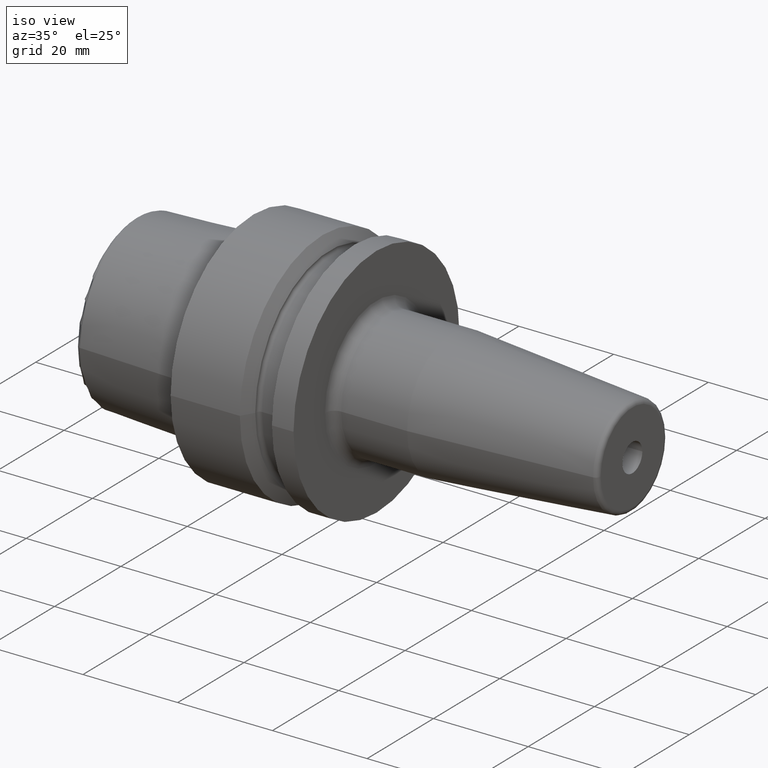
[diagram: clean part render]
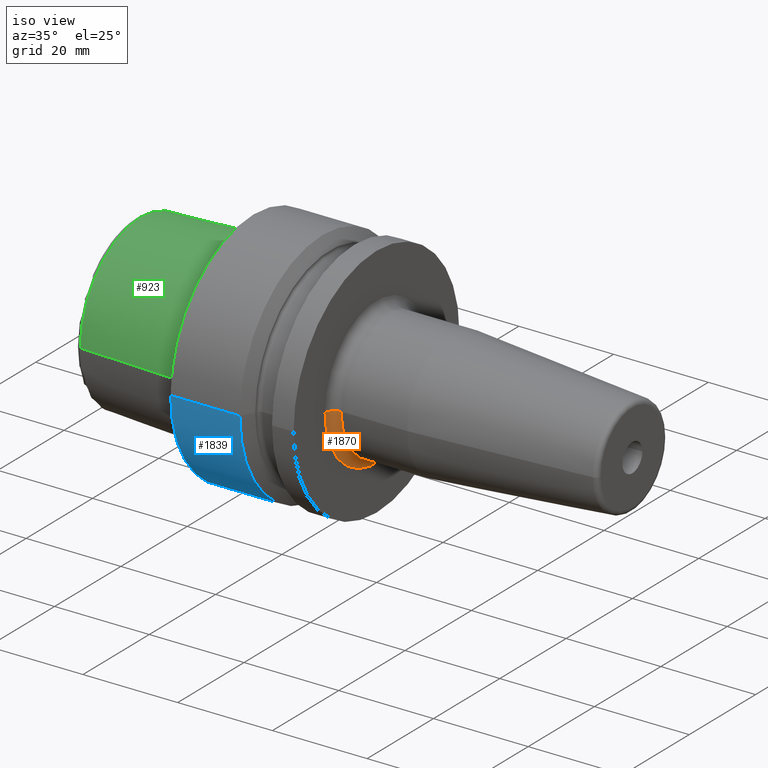
[diagram: same view with three faces highlighted in distinct colors, each labeled with its STEP entity id]
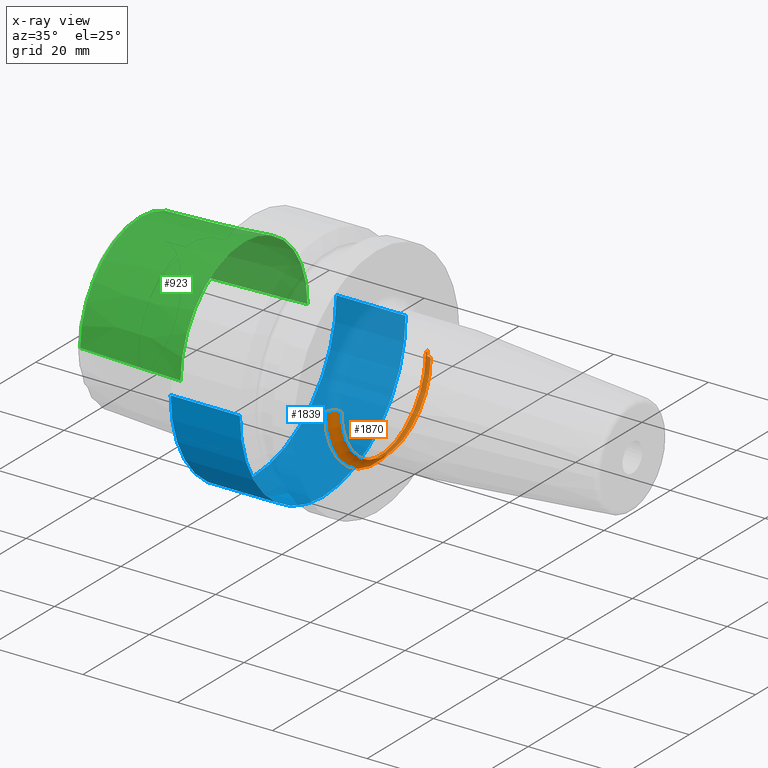
[diagram: x-ray of the same camera — body ghosted, the three highlighted faces saturated]
A machine part, iso view with three faces highlighted in distinct colors.
The next image is the same camera in x-ray (body ghosted, the three faces saturated) — at least one of them is partly hidden behind the body in this view.
Their STEP definitions:

[orange] entity #1870 — the highlighted toroidal blend (fillet) surface has major radius 15.5 mm and minor (blend) radius 2 mm.
#622=CARTESIAN_POINT('',(2.595E1,0.E0,0.E0));
#623=DIRECTION('',(1.E0,0.E0,0.E0));
#624=DIRECTION('',(0.E0,-1.E0,0.E0));
#625=AXIS2_PLACEMENT_3D('',#622,#623,#624);
#632=CARTESIAN_POINT('',(2.795E1,-1.55E1,5.602462938015E-14));
#633=DIRECTION('',(0.E0,0.E0,-1.E0));
#634=DIRECTION('',(-1.E0,0.E0,0.E0));
#635=AXIS2_PLACEMENT_3D('',#632,#633,#634);
#637=CARTESIAN_POINT('',(2.795E1,1.55E1,-6.493416915276E-14));
#638=DIRECTION('',(0.E0,0.E0,1.E0));
#639=DIRECTION('',(-1.E0,0.E0,0.E0));
#640=AXIS2_PLACEMENT_3D('',#637,#638,#639);
#652=CARTESIAN_POINT('',(2.795E1,0.E0,0.E0));
#653=DIRECTION('',(1.E0,0.E0,0.E0));
#654=DIRECTION('',(0.E0,-1.E0,0.E0));
#655=AXIS2_PLACEMENT_3D('',#652,#653,#654);
#892=CARTESIAN_POINT('',(2.595E1,-1.55E1,-1.756317058271E-14));
#893=CARTESIAN_POINT('',(2.595E1,1.55E1,0.E0));
#894=VERTEX_POINT('',#892);
#895=VERTEX_POINT('',#893);
#896=CARTESIAN_POINT('',(2.795E1,-1.35E1,0.E0));
#897=CARTESIAN_POINT('',(2.795E1,1.35E1,0.E0));
#898=VERTEX_POINT('',#896);
#899=VERTEX_POINT('',#897);
#1856=CARTESIAN_POINT('',(2.795E1,0.E0,0.E0));
#1857=DIRECTION('',(1.E0,0.E0,0.E0));
#1858=DIRECTION('',(0.E0,-9.999837828985E-1,5.695080325012E-3));
#1859=AXIS2_PLACEMENT_3D('',#1856,#1857,#1858);
#1860=TOROIDAL_SURFACE('',#1859,1.55E1,2.E0);
#1861=ORIENTED_EDGE('',*,*,#1849,.F.);
#1863=ORIENTED_EDGE('',*,*,#1862,.T.);
#1865=ORIENTED_EDGE('',*,*,#1864,.T.);
#1867=ORIENTED_EDGE('',*,*,#1866,.F.);
#1868=EDGE_LOOP('',(#1861,#1863,#1865,#1867));
#1869=FACE_OUTER_BOUND('',#1868,.F.);
#1870=ADVANCED_FACE('',(#1869),#1860,.F.);
#626=CIRCLE('',#625,1.55E1);
#636=CIRCLE('',#635,2.E0);
#641=CIRCLE('',#640,2.E0);
#656=CIRCLE('',#655,1.35E1);
#1849=EDGE_CURVE('',#894,#895,#626,.T.);
#1862=EDGE_CURVE('',#894,#898,#636,.T.);
#1864=EDGE_CURVE('',#898,#899,#656,.T.);
#1866=EDGE_CURVE('',#895,#899,#641,.T.);

[blue] entity #1839 — the highlighted cylindrical surface (partial cylindrical patch) has radius 25 mm, axis along (1, 0, 0).
#457=CARTESIAN_POINT('',(0.E0,0.E0,0.E0));
#458=DIRECTION('',(-1.E0,0.E0,0.E0));
#459=DIRECTION('',(0.E0,1.E0,0.E0));
#460=AXIS2_PLACEMENT_3D('',#457,#458,#459);
#609=CARTESIAN_POINT('',(1.460806716851E1,0.E0,0.E0));
#610=DIRECTION('',(1.E0,0.E0,0.E0));
#611=DIRECTION('',(0.E0,-1.E0,0.E0));
#612=AXIS2_PLACEMENT_3D('',#609,#610,#611);
#614=DIRECTION('',(-1.E0,0.E0,0.E0));
#615=VECTOR('',#614,1.460806716851E1);
#616=CARTESIAN_POINT('',(1.460806716851E1,2.5E1,0.E0));
#617=LINE('',#616,#615);
#618=DIRECTION('',(-1.E0,0.E0,0.E0));
#619=VECTOR('',#618,1.460806716851E1);
#620=CARTESIAN_POINT('',(1.460806716851E1,-2.5E1,0.E0));
#621=LINE('',#620,#619);
#802=CARTESIAN_POINT('',(1.460806716851E1,2.5E1,0.E0));
#803=VERTEX_POINT('',#802);
#806=CARTESIAN_POINT('',(1.460806716851E1,-2.5E1,0.E0));
#807=VERTEX_POINT('',#806);
#812=CARTESIAN_POINT('',(0.E0,2.5E1,0.E0));
#813=CARTESIAN_POINT('',(0.E0,-2.5E1,0.E0));
#814=VERTEX_POINT('',#812);
#815=VERTEX_POINT('',#813);
#1828=CARTESIAN_POINT('',(-2.74425E1,0.E0,0.E0));
#1829=DIRECTION('',(1.E0,0.E0,0.E0));
#1830=DIRECTION('',(0.E0,-1.E0,0.E0));
#1831=AXIS2_PLACEMENT_3D('',#1828,#1829,#1830);
#1832=CYLINDRICAL_SURFACE('',#1831,2.5E1);
#1833=ORIENTED_EDGE('',*,*,#1795,.T.);
#1834=ORIENTED_EDGE('',*,*,#1638,.T.);
#1835=ORIENTED_EDGE('',*,*,#1603,.T.);
#1836=ORIENTED_EDGE('',*,*,#1635,.F.);
#1837=EDGE_LOOP('',(#1833,#1834,#1835,#1836));
#1838=FACE_OUTER_BOUND('',#1837,.F.);
#1839=ADVANCED_FACE('',(#1838),#1832,.T.);
#461=CIRCLE('',#460,2.5E1);
#613=CIRCLE('',#612,2.5E1);
#1603=EDGE_CURVE('',#814,#815,#461,.T.);
#1635=EDGE_CURVE('',#807,#815,#621,.T.);
#1638=EDGE_CURVE('',#803,#814,#617,.T.);
#1795=EDGE_CURVE('',#807,#803,#613,.T.);

[green] entity #923 — the highlighted conical surface has half-angle 2.868 deg.
#2=CARTESIAN_POINT('',(-2.E0,0.E0,0.E0));
#3=DIRECTION('',(1.E0,0.E0,0.E0));
#4=DIRECTION('',(0.E0,1.E0,0.E0));
#5=AXIS2_PLACEMENT_3D('',#2,#3,#4);
#30=DIRECTION('',(-9.987473526255E-1,-5.003724236654E-2,0.E0));
#31=VECTOR('',#30,2.197756738445E1);
#32=CARTESIAN_POINT('',(-2.E0,1.91548E1,0.E0));
#33=LINE('',#32,#31);
#34=DIRECTION('',(-9.987473526255E-1,5.003724236654E-2,0.E0));
#35=VECTOR('',#34,2.197756738445E1);
#36=CARTESIAN_POINT('',(-2.E0,-1.91548E1,0.E0));
#37=LINE('',#36,#35);
#53=CARTESIAN_POINT('',(-2.395003724237E1,0.E0,0.E0));
#54=DIRECTION('',(1.E0,0.E0,0.E0));
#55=DIRECTION('',(0.E0,1.E0,0.E0));
#56=AXIS2_PLACEMENT_3D('',#53,#54,#55);
#752=CARTESIAN_POINT('',(-2.E0,1.91548E1,0.E0));
#753=CARTESIAN_POINT('',(-2.E0,-1.91548E1,0.E0));
#754=VERTEX_POINT('',#752);
#755=VERTEX_POINT('',#753);
#756=CARTESIAN_POINT('',(-2.395003724237E1,1.805510313416E1,0.E0));
#757=VERTEX_POINT('',#756);
#758=CARTESIAN_POINT('',(-2.395003724237E1,-1.805510313416E1,0.E0));
#759=VERTEX_POINT('',#758);
#908=CARTESIAN_POINT('',(-1.297501862118E1,0.E0,0.E0));
#909=DIRECTION('',(1.E0,0.E0,0.E0));
#910=DIRECTION('',(0.E0,-1.E0,0.E0));
#911=AXIS2_PLACEMENT_3D('',#908,#909,#910);
#912=CONICAL_SURFACE('',#911,1.860495156708E1,2.868120487315E0);
#914=ORIENTED_EDGE('',*,*,#913,.T.);
#916=ORIENTED_EDGE('',*,*,#915,.T.);
#918=ORIENTED_EDGE('',*,*,#917,.F.);
#920=ORIENTED_EDGE('',*,*,#919,.F.);
#921=EDGE_LOOP('',(#914,#916,#918,#920));
#922=FACE_OUTER_BOUND('',#921,.F.);
#923=ADVANCED_FACE('',(#922),#912,.T.);
#6=CIRCLE('',#5,1.91548E1);
#57=CIRCLE('',#56,1.805510313416E1);
#913=EDGE_CURVE('',#754,#755,#6,.T.);
#915=EDGE_CURVE('',#755,#759,#37,.T.);
#917=EDGE_CURVE('',#757,#759,#57,.T.);
#919=EDGE_CURVE('',#754,#757,#33,.T.);